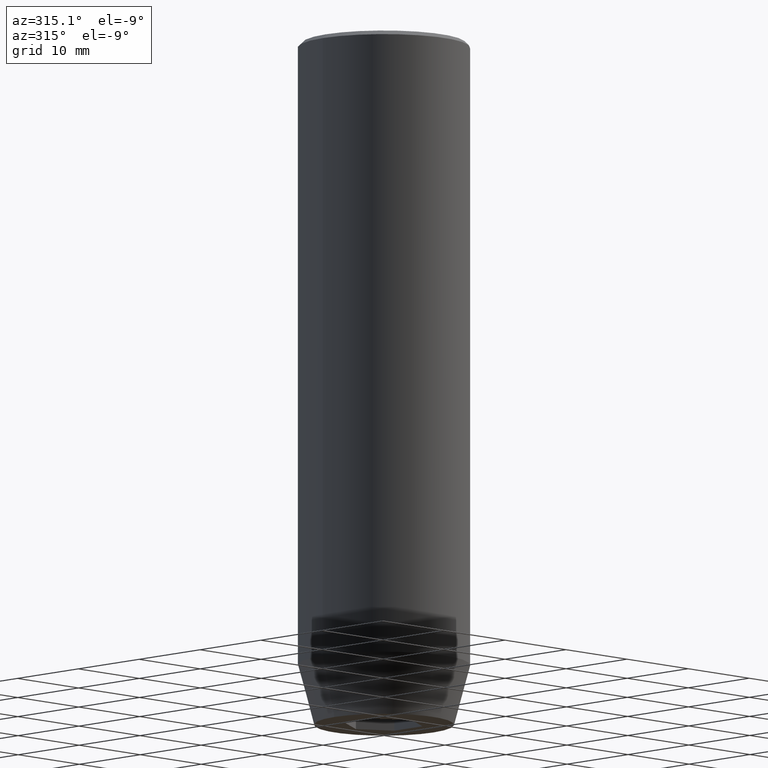
[diagram: clean part render]
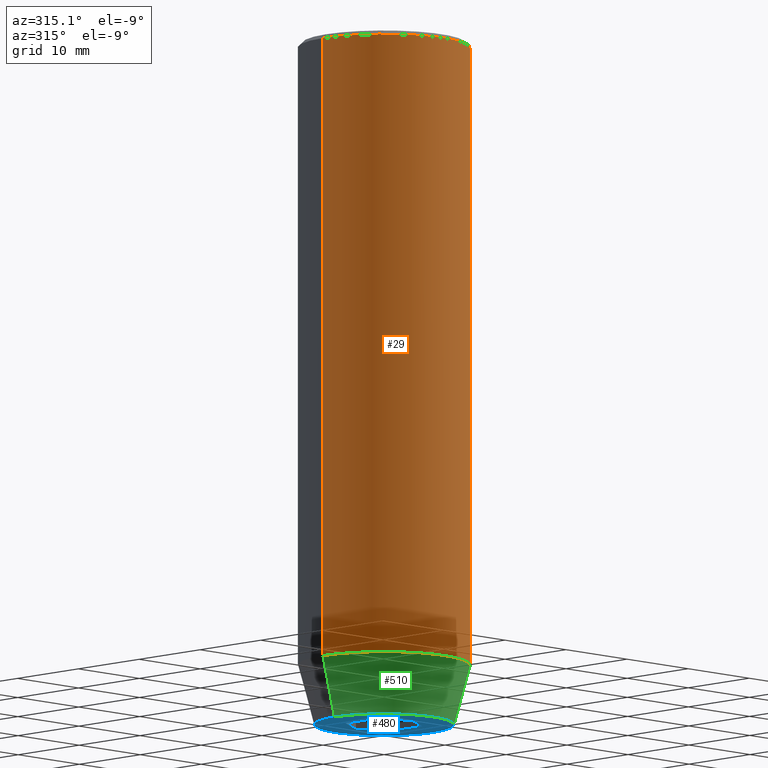
[diagram: same view with three faces highlighted in distinct colors, each labeled with its STEP entity id]
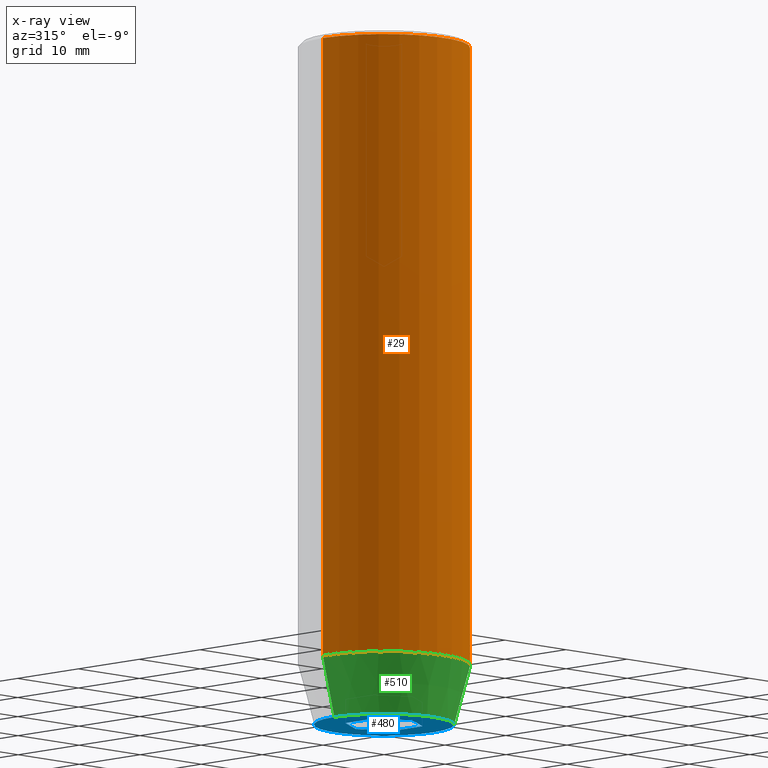
[diagram: x-ray of the same camera — body ghosted, the three highlighted faces saturated]
A machine part, auxiliary view with three faces highlighted in distinct colors.
The next image is the same camera in x-ray (body ghosted, the three faces saturated) — at least one of them is partly hidden behind the body in this view.
Their STEP definitions:

[orange] entity #29 — the highlighted cylindrical surface (partial cylindrical patch) has radius 10 mm, axis along (-0, -0, 1).
#23 = CARTESIAN_POINT ( 'NONE',  ( 10.00000000000000000, 0.000000000000000000, 0.000000000000000000 ) ) ;
#24 = EDGE_CURVE ( 'NONE', #156, #398, #34, .T. ) ;
#28 = DIRECTION ( 'NONE',  ( -0.000000000000000000, -0.000000000000000000, 1.000000000000000000 ) ) ;
#29 = ADVANCED_FACE ( 'NONE', ( #479 ), #123, .T. ) ;
#34 = CIRCLE ( 'NONE', #71, 10.00000000000000000 ) ;
#55 = EDGE_LOOP ( 'NONE', ( #383, #402, #76, #507 ) ) ;
#71 = AXIS2_PLACEMENT_3D ( 'NONE', #125, #130, #390 ) ;
#76 = ORIENTED_EDGE ( 'NONE', *, *, #467, .T. ) ;
#111 = AXIS2_PLACEMENT_3D ( 'NONE', #573, #120, #373 ) ;
#120 = DIRECTION ( 'NONE',  ( 0.000000000000000000, 0.000000000000000000, -1.000000000000000000 ) ) ;
#123 = CYLINDRICAL_SURFACE ( 'NONE', #174, 10.00000000000000000 ) ;
#125 = CARTESIAN_POINT ( 'NONE',  ( 0.000000000000000000, 0.000000000000000000, -73.00000000000001421 ) ) ;
#126 = CIRCLE ( 'NONE', #111, 10.00000000000000000 ) ;
#130 = DIRECTION ( 'NONE',  ( -0.000000000000000000, -0.000000000000000000, 1.000000000000000000 ) ) ;
#156 = VERTEX_POINT ( 'NONE', #230 ) ;
#171 = CARTESIAN_POINT ( 'NONE',  ( 10.00000000000000000, 0.000000000000000000, -73.00000000000001421 ) ) ;
#174 = AXIS2_PLACEMENT_3D ( 'NONE', #333, #28, #234 ) ;
#190 = EDGE_CURVE ( 'NONE', #384, #325, #126, .T. ) ;
#215 = DIRECTION ( 'NONE',  ( -0.000000000000000000, -0.000000000000000000, 1.000000000000000000 ) ) ;
#228 = EDGE_CURVE ( 'NONE', #156, #325, #587, .T. ) ;
#230 = CARTESIAN_POINT ( 'NONE',  ( -10.00000000000000000, 1.224646799147353256E-15, -73.00000000000001421 ) ) ;
#234 = DIRECTION ( 'NONE',  ( 1.000000000000000000, 0.000000000000000000, 0.000000000000000000 ) ) ;
#325 = VERTEX_POINT ( 'NONE', #487 ) ;
#333 = CARTESIAN_POINT ( 'NONE',  ( 0.000000000000000000, 0.000000000000000000, 0.000000000000000000 ) ) ;
#337 = VECTOR ( 'NONE', #455, 1000.000000000000000 ) ;
#340 = CARTESIAN_POINT ( 'NONE',  ( 10.00000000000000000, 0.000000000000000000, -0.4999999999999987232 ) ) ;
#373 = DIRECTION ( 'NONE',  ( 1.000000000000000000, 0.000000000000000000, 0.000000000000000000 ) ) ;
#383 = ORIENTED_EDGE ( 'NONE', *, *, #228, .F. ) ;
#384 = VERTEX_POINT ( 'NONE', #340 ) ;
#390 = DIRECTION ( 'NONE',  ( 1.000000000000000000, 0.000000000000000000, 0.000000000000000000 ) ) ;
#398 = VERTEX_POINT ( 'NONE', #171 ) ;
#402 = ORIENTED_EDGE ( 'NONE', *, *, #24, .T. ) ;
#423 = LINE ( 'NONE', #23, #337 ) ;
#442 = CARTESIAN_POINT ( 'NONE',  ( -10.00000000000000000, 1.224646799147353256E-15, 0.000000000000000000 ) ) ;
#455 = DIRECTION ( 'NONE',  ( -0.000000000000000000, -0.000000000000000000, 1.000000000000000000 ) ) ;
#467 = EDGE_CURVE ( 'NONE', #398, #384, #423, .T. ) ;
#473 = VECTOR ( 'NONE', #215, 1000.000000000000000 ) ;
#479 = FACE_OUTER_BOUND ( 'NONE', #55, .T. ) ;
#487 = CARTESIAN_POINT ( 'NONE',  ( -10.00000000000000000, 1.224646799147353256E-15, -0.4999999999999987232 ) ) ;
#507 = ORIENTED_EDGE ( 'NONE', *, *, #190, .T. ) ;
#573 = CARTESIAN_POINT ( 'NONE',  ( 0.000000000000000000, 0.000000000000000000, -0.4999999999999987232 ) ) ;
#587 = LINE ( 'NONE', #442, #473 ) ;

[blue] entity #480 — the highlighted planar face has unit normal (0, 0, -1).
#1 = LINE ( 'NONE', #104, #474 ) ;
#4 = DIRECTION ( 'NONE',  ( -0.8660254037844384856, 0.5000000000000002220, 0.000000000000000000 ) ) ;
#6 = ORIENTED_EDGE ( 'NONE', *, *, #559, .F. ) ;
#49 = VECTOR ( 'NONE', #4, 1000.000000000000114 ) ;
#58 = VERTEX_POINT ( 'NONE', #483 ) ;
#63 = AXIS2_PLACEMENT_3D ( 'NONE', #529, #475, #468 ) ;
#68 = ORIENTED_EDGE ( 'NONE', *, *, #334, .F. ) ;
#86 = DIRECTION ( 'NONE',  ( -1.000000000000000000, 0.000000000000000000, -0.000000000000000000 ) ) ;
#95 = EDGE_LOOP ( 'NONE', ( #319, #257, #318, #68, #6, #404 ) ) ;
#96 = DIRECTION ( 'NONE',  ( 0.000000000000000000, -1.000000000000000000, 0.000000000000000000 ) ) ;
#104 = CARTESIAN_POINT ( 'NONE',  ( 4.000000000000000000, 0.000000000000000000, -80.00000000000001421 ) ) ;
#115 = EDGE_CURVE ( 'NONE', #453, #58, #324, .T. ) ;
#134 = VECTOR ( 'NONE', #570, 1000.000000000000000 ) ;
#139 = DIRECTION ( 'NONE',  ( 0.8660254037844385966, -0.5000000000000001110, 0.000000000000000000 ) ) ;
#155 = LINE ( 'NONE', #567, #134 ) ;
#159 = VECTOR ( 'NONE', #180, 999.9999999999998863 ) ;
#168 = LINE ( 'NONE', #312, #49 ) ;
#169 = CARTESIAN_POINT ( 'NONE',  ( 4.000000000000000000, 2.309401076758503368, -80.00000000000001421 ) ) ;
#176 = CARTESIAN_POINT ( 'NONE',  ( 2.000000000000000444, 3.464101615137754386, -80.00000000000001421 ) ) ;
#180 = DIRECTION ( 'NONE',  ( 0.8660254037844387076, 0.5000000000000001110, 0.000000000000000000 ) ) ;
#186 = EDGE_CURVE ( 'NONE', #211, #553, #282, .T. ) ;
#189 = CARTESIAN_POINT ( 'NONE',  ( -4.000000000000000000, 2.309401076758503368, -80.00000000000001421 ) ) ;
#191 = VECTOR ( 'NONE', #139, 1000.000000000000000 ) ;
#195 = CARTESIAN_POINT ( 'NONE',  ( 0.000000000000000000, 0.000000000000000000, -80.00000000000001421 ) ) ;
#197 = EDGE_CURVE ( 'NONE', #272, #453, #155, .T. ) ;
#211 = VERTEX_POINT ( 'NONE', #259 ) ;
#236 = PLANE ( 'NONE',  #277 ) ;
#249 = ORIENTED_EDGE ( 'NONE', *, *, #186, .F. ) ;
#251 = EDGE_CURVE ( 'NONE', #418, #272, #168, .T. ) ;
#252 = CIRCLE ( 'NONE', #336, 8.124355652982140796 ) ;
#257 = ORIENTED_EDGE ( 'NONE', *, *, #197, .F. ) ;
#259 = CARTESIAN_POINT ( 'NONE',  ( 8.124355652982140796, 0.000000000000000000, -80.00000000000001421 ) ) ;
#268 = DIRECTION ( 'NONE',  ( -0.8660254037844384856, -0.5000000000000002220, 0.000000000000000000 ) ) ;
#272 = VERTEX_POINT ( 'NONE', #320 ) ;
#277 = AXIS2_PLACEMENT_3D ( 'NONE', #482, #430, #86 ) ;
#282 = CIRCLE ( 'NONE', #63, 8.124355652982140796 ) ;
#288 = FACE_BOUND ( 'NONE', #95, .T. ) ;
#294 = EDGE_CURVE ( 'NONE', #58, #330, #551, .T. ) ;
#308 = CARTESIAN_POINT ( 'NONE',  ( -8.124355652982140796, 1.109796706851640753E-15, -80.00000000000001421 ) ) ;
#312 = CARTESIAN_POINT ( 'NONE',  ( -2.000000000000000888, -3.464101615137754386, -80.00000000000001421 ) ) ;
#318 = ORIENTED_EDGE ( 'NONE', *, *, #251, .F. ) ;
#319 = ORIENTED_EDGE ( 'NONE', *, *, #115, .F. ) ;
#320 = CARTESIAN_POINT ( 'NONE',  ( -4.000000000000000000, -2.309401076758503368, -80.00000000000001421 ) ) ;
#324 = LINE ( 'NONE', #512, #159 ) ;
#330 = VERTEX_POINT ( 'NONE', #169 ) ;
#334 = EDGE_CURVE ( 'NONE', #574, #418, #443, .T. ) ;
#336 = AXIS2_PLACEMENT_3D ( 'NONE', #195, #461, #498 ) ;
#343 = VECTOR ( 'NONE', #268, 1000.000000000000114 ) ;
#345 = ORIENTED_EDGE ( 'NONE', *, *, #362, .F. ) ;
#353 = EDGE_LOOP ( 'NONE', ( #249, #345 ) ) ;
#357 = CARTESIAN_POINT ( 'NONE',  ( 2.000000000000000888, -3.464101615137754386, -80.00000000000001421 ) ) ;
#360 = CARTESIAN_POINT ( 'NONE',  ( 4.336808689942017736E-16, -4.618802153517006737, -80.00000000000001421 ) ) ;
#362 = EDGE_CURVE ( 'NONE', #553, #211, #252, .T. ) ;
#404 = ORIENTED_EDGE ( 'NONE', *, *, #294, .F. ) ;
#418 = VERTEX_POINT ( 'NONE', #360 ) ;
#430 = DIRECTION ( 'NONE',  ( 0.000000000000000000, 0.000000000000000000, -1.000000000000000000 ) ) ;
#440 = FACE_OUTER_BOUND ( 'NONE', #353, .T. ) ;
#443 = LINE ( 'NONE', #357, #343 ) ;
#453 = VERTEX_POINT ( 'NONE', #189 ) ;
#461 = DIRECTION ( 'NONE',  ( -0.000000000000000000, -0.000000000000000000, 1.000000000000000000 ) ) ;
#468 = DIRECTION ( 'NONE',  ( 1.000000000000000000, 0.000000000000000000, 0.000000000000000000 ) ) ;
#474 = VECTOR ( 'NONE', #96, 1000.000000000000000 ) ;
#475 = DIRECTION ( 'NONE',  ( -0.000000000000000000, -0.000000000000000000, 1.000000000000000000 ) ) ;
#480 = ADVANCED_FACE ( 'NONE', ( #288, #440 ), #236, .T. ) ;
#482 = CARTESIAN_POINT ( 'NONE',  ( 0.000000000000000000, 8.124355652982140796, -80.00000000000001421 ) ) ;
#483 = CARTESIAN_POINT ( 'NONE',  ( 0.000000000000000000, 4.618802153517006737, -80.00000000000001421 ) ) ;
#492 = CARTESIAN_POINT ( 'NONE',  ( 4.000000000000000000, -2.309401076758502480, -80.00000000000001421 ) ) ;
#498 = DIRECTION ( 'NONE',  ( 1.000000000000000000, 0.000000000000000000, 0.000000000000000000 ) ) ;
#512 = CARTESIAN_POINT ( 'NONE',  ( -2.000000000000000000, 3.464101615137754830, -80.00000000000001421 ) ) ;
#529 = CARTESIAN_POINT ( 'NONE',  ( 0.000000000000000000, 0.000000000000000000, -80.00000000000001421 ) ) ;
#551 = LINE ( 'NONE', #176, #191 ) ;
#553 = VERTEX_POINT ( 'NONE', #308 ) ;
#559 = EDGE_CURVE ( 'NONE', #330, #574, #1, .T. ) ;
#567 = CARTESIAN_POINT ( 'NONE',  ( -4.000000000000000000, 0.000000000000000000, -80.00000000000001421 ) ) ;
#570 = DIRECTION ( 'NONE',  ( 0.000000000000000000, 1.000000000000000000, 0.000000000000000000 ) ) ;
#574 = VERTEX_POINT ( 'NONE', #492 ) ;

[green] entity #510 — the highlighted conical surface has half-angle 15 deg.
#7 = CARTESIAN_POINT ( 'NONE',  ( -10.00000000000000000, 1.224646799147353256E-15, -73.00000000000001421 ) ) ;
#24 = EDGE_CURVE ( 'NONE', #156, #398, #34, .T. ) ;
#26 = DIRECTION ( 'NONE',  ( -0.000000000000000000, -0.000000000000000000, 1.000000000000000000 ) ) ;
#34 = CIRCLE ( 'NONE', #71, 10.00000000000000000 ) ;
#40 = FACE_OUTER_BOUND ( 'NONE', #341, .T. ) ;
#47 = CARTESIAN_POINT ( 'NONE',  ( 10.00000000000000000, 0.000000000000000000, -73.00000000000001421 ) ) ;
#48 = ORIENTED_EDGE ( 'NONE', *, *, #323, .T. ) ;
#71 = AXIS2_PLACEMENT_3D ( 'NONE', #125, #130, #390 ) ;
#125 = CARTESIAN_POINT ( 'NONE',  ( 0.000000000000000000, 0.000000000000000000, -73.00000000000001421 ) ) ;
#130 = DIRECTION ( 'NONE',  ( -0.000000000000000000, -0.000000000000000000, 1.000000000000000000 ) ) ;
#140 = DIRECTION ( 'NONE',  ( 0.2588190451025206840, 0.000000000000000000, 0.9659258262890683122 ) ) ;
#156 = VERTEX_POINT ( 'NONE', #230 ) ;
#158 = ORIENTED_EDGE ( 'NONE', *, *, #408, .F. ) ;
#170 = CONICAL_SURFACE ( 'NONE', #240, 10.00000000000000000, 0.2617993877991493523 ) ;
#171 = CARTESIAN_POINT ( 'NONE',  ( 10.00000000000000000, 0.000000000000000000, -73.00000000000001421 ) ) ;
#195 = CARTESIAN_POINT ( 'NONE',  ( 0.000000000000000000, 0.000000000000000000, -80.00000000000001421 ) ) ;
#211 = VERTEX_POINT ( 'NONE', #259 ) ;
#212 = LINE ( 'NONE', #47, #518 ) ;
#230 = CARTESIAN_POINT ( 'NONE',  ( -10.00000000000000000, 1.224646799147353256E-15, -73.00000000000001421 ) ) ;
#238 = DIRECTION ( 'NONE',  ( 1.000000000000000000, 0.000000000000000000, 0.000000000000000000 ) ) ;
#240 = AXIS2_PLACEMENT_3D ( 'NONE', #523, #26, #238 ) ;
#252 = CIRCLE ( 'NONE', #336, 8.124355652982140796 ) ;
#259 = CARTESIAN_POINT ( 'NONE',  ( 8.124355652982140796, 0.000000000000000000, -80.00000000000001421 ) ) ;
#308 = CARTESIAN_POINT ( 'NONE',  ( -8.124355652982140796, 1.109796706851640753E-15, -80.00000000000001421 ) ) ;
#323 = EDGE_CURVE ( 'NONE', #211, #398, #212, .T. ) ;
#336 = AXIS2_PLACEMENT_3D ( 'NONE', #195, #461, #498 ) ;
#341 = EDGE_LOOP ( 'NONE', ( #158, #572, #48, #425 ) ) ;
#362 = EDGE_CURVE ( 'NONE', #553, #211, #252, .T. ) ;
#390 = DIRECTION ( 'NONE',  ( 1.000000000000000000, 0.000000000000000000, 0.000000000000000000 ) ) ;
#398 = VERTEX_POINT ( 'NONE', #171 ) ;
#408 = EDGE_CURVE ( 'NONE', #553, #156, #447, .T. ) ;
#425 = ORIENTED_EDGE ( 'NONE', *, *, #24, .F. ) ;
#447 = LINE ( 'NONE', #7, #569 ) ;
#461 = DIRECTION ( 'NONE',  ( -0.000000000000000000, -0.000000000000000000, 1.000000000000000000 ) ) ;
#493 = DIRECTION ( 'NONE',  ( -0.2588190451025206840, 3.169619151431763092E-17, 0.9659258262890683122 ) ) ;
#498 = DIRECTION ( 'NONE',  ( 1.000000000000000000, 0.000000000000000000, 0.000000000000000000 ) ) ;
#510 = ADVANCED_FACE ( 'NONE', ( #40 ), #170, .T. ) ;
#518 = VECTOR ( 'NONE', #140, 1000.000000000000114 ) ;
#523 = CARTESIAN_POINT ( 'NONE',  ( 0.000000000000000000, 0.000000000000000000, -73.00000000000001421 ) ) ;
#553 = VERTEX_POINT ( 'NONE', #308 ) ;
#569 = VECTOR ( 'NONE', #493, 1000.000000000000114 ) ;
#572 = ORIENTED_EDGE ( 'NONE', *, *, #362, .T. ) ;